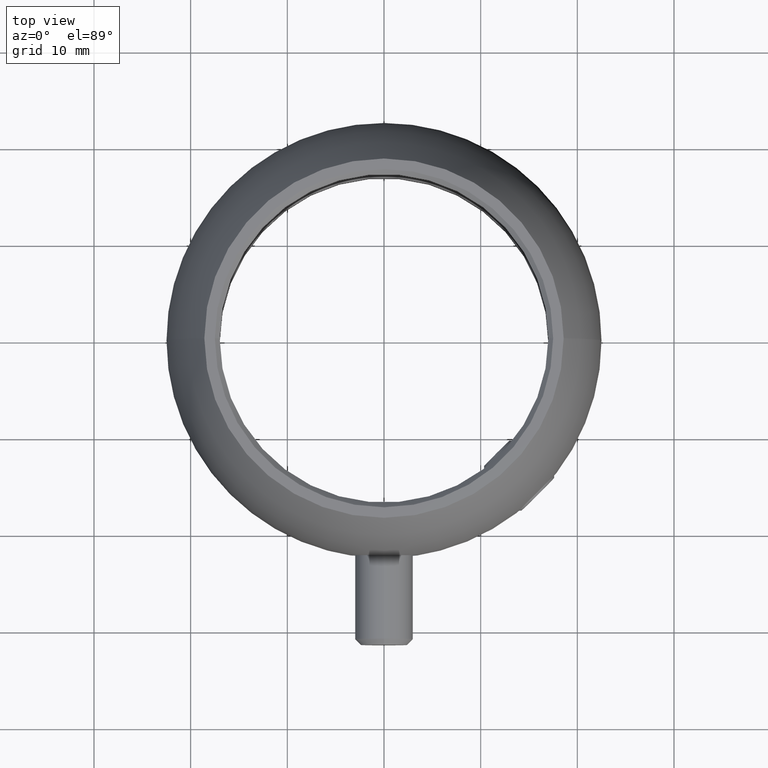
[diagram: clean part render]
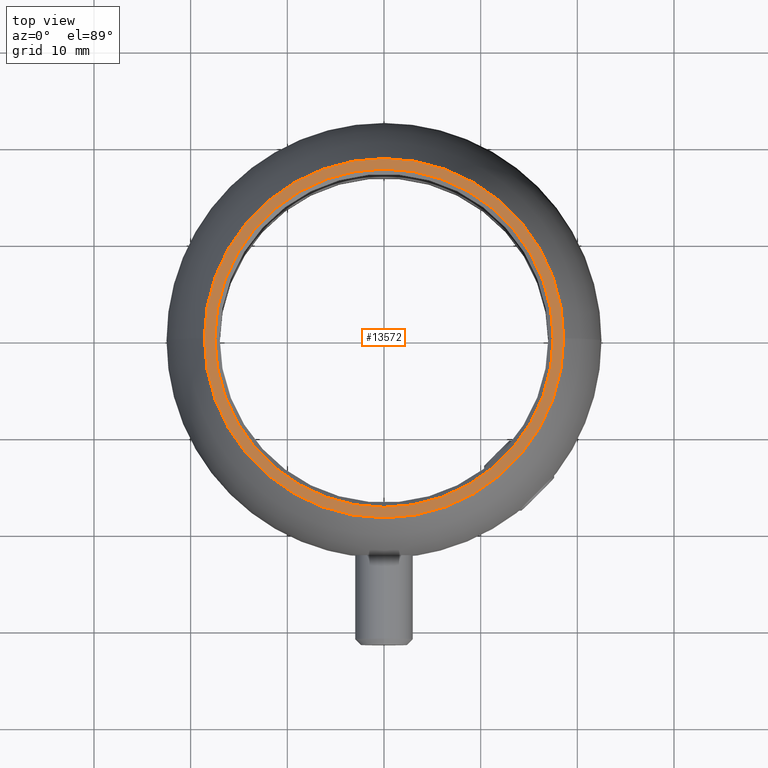
[diagram: same view with one face highlighted and labeled with its STEP entity id]
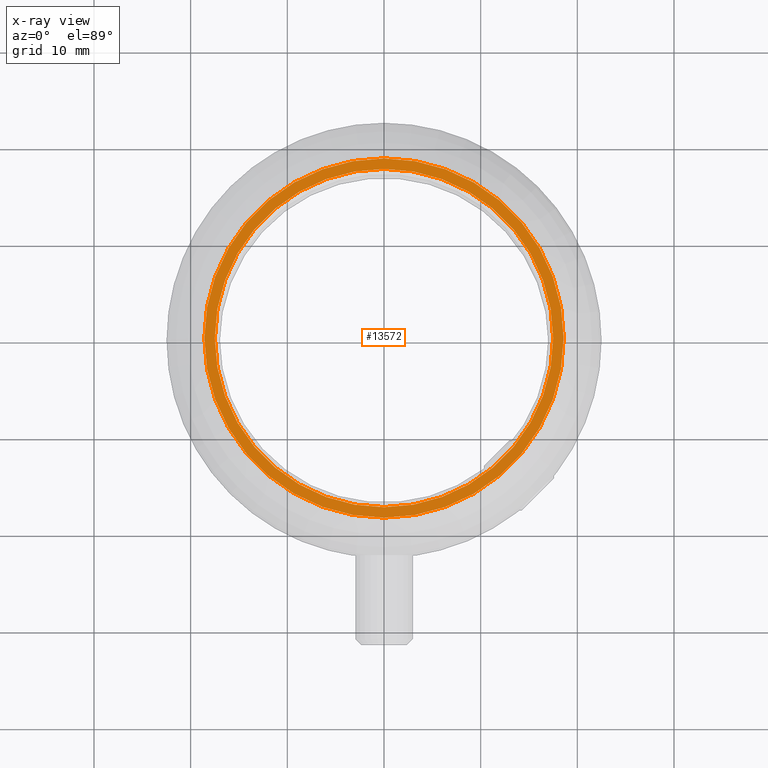
[diagram: x-ray of the same camera — body ghosted, the highlighted face saturated]
A machine part, top view. The second image highlights one B-rep face of the part: STEP entity #13572.
The next image is the same camera in x-ray: the body ghosted, the highlighted face saturated — about 0% of this face is hidden behind the body in this view.
In plain terms, the highlighted planar face has unit normal (0, 0, -1).
Its self-contained STEP definition (entity closure, byte-faithful):
#302 = DIRECTION ( 'NONE',  ( -0.000000000000000000, -0.000000000000000000, 1.000000000000000000 ) ) ;
#570 = ORIENTED_EDGE ( 'NONE', *, *, #12936, .F. ) ;
#910 = CIRCLE ( 'NONE', #17827, 18.58679276123038804 ) ;
#1076 = DIRECTION ( 'NONE',  ( 0.000000000000000000, 0.000000000000000000, -1.000000000000000000 ) ) ;
#1498 = AXIS2_PLACEMENT_3D ( 'NONE', #3514, #8497, #1667 ) ;
#1664 = EDGE_CURVE ( 'NONE', #2584, #17037, #5212, .T. ) ;
#1667 = DIRECTION ( 'NONE',  ( 1.000000000000000000, 0.000000000000000000, 0.000000000000000000 ) ) ;
#2584 = VERTEX_POINT ( 'NONE', #17830 ) ;
#3514 = CARTESIAN_POINT ( 'NONE',  ( 0.000000000000000000, 0.000000000000000000, 14.00000000000000178 ) ) ;
#3735 = DIRECTION ( 'NONE',  ( 1.000000000000000000, 0.000000000000000000, 0.000000000000000000 ) ) ;
#3969 = CIRCLE ( 'NONE', #5939, 18.58679276123038804 ) ;
#4698 = FACE_OUTER_BOUND ( 'NONE', #16415, .T. ) ;
#5016 = VERTEX_POINT ( 'NONE', #20831 ) ;
#5212 = CIRCLE ( 'NONE', #1498, 17.50000000000000000 ) ;
#5577 = DIRECTION ( 'NONE',  ( -0.000000000000000000, -0.000000000000000000, 1.000000000000000000 ) ) ;
#5939 = AXIS2_PLACEMENT_3D ( 'NONE', #7211, #5577, #3735 ) ;
#7075 = EDGE_CURVE ( 'NONE', #5016, #12567, #3969, .T. ) ;
#7211 = CARTESIAN_POINT ( 'NONE',  ( 0.000000000000000000, 0.000000000000000000, 13.99999999999999822 ) ) ;
#8428 = AXIS2_PLACEMENT_3D ( 'NONE', #15403, #302, #12136 ) ;
#8497 = DIRECTION ( 'NONE',  ( -0.000000000000000000, -0.000000000000000000, 1.000000000000000000 ) ) ;
#9008 = AXIS2_PLACEMENT_3D ( 'NONE', #19856, #1076, #16485 ) ;
#12035 = ORIENTED_EDGE ( 'NONE', *, *, #1664, .F. ) ;
#12136 = DIRECTION ( 'NONE',  ( 1.000000000000000000, 0.000000000000000000, 0.000000000000000000 ) ) ;
#12379 = ORIENTED_EDGE ( 'NONE', *, *, #17236, .T. ) ;
#12434 = DIRECTION ( 'NONE',  ( -0.000000000000000000, -0.000000000000000000, 1.000000000000000000 ) ) ;
#12563 = PLANE ( 'NONE',  #9008 ) ;
#12567 = VERTEX_POINT ( 'NONE', #15716 ) ;
#12936 = EDGE_CURVE ( 'NONE', #17037, #2584, #16843, .T. ) ;
#13572 = ADVANCED_FACE ( 'NONE', ( #20729, #4698 ), #12563, .F. ) ;
#15088 = EDGE_LOOP ( 'NONE', ( #12035, #570 ) ) ;
#15114 = CARTESIAN_POINT ( 'NONE',  ( -17.50000000000000000, 2.143131898507868248E-15, 14.00000000000000178 ) ) ;
#15403 = CARTESIAN_POINT ( 'NONE',  ( 0.000000000000000000, 0.000000000000000000, 14.00000000000000178 ) ) ;
#15563 = CARTESIAN_POINT ( 'NONE',  ( 0.000000000000000000, 0.000000000000000000, 13.99999999999999822 ) ) ;
#15716 = CARTESIAN_POINT ( 'NONE',  ( -18.58679276123038804, 2.276225626145599495E-15, 13.99999999999999822 ) ) ;
#16415 = EDGE_LOOP ( 'NONE', ( #17424, #12379 ) ) ;
#16485 = DIRECTION ( 'NONE',  ( -1.000000000000000000, 0.000000000000000000, -0.000000000000000000 ) ) ;
#16843 = CIRCLE ( 'NONE', #8428, 17.50000000000000000 ) ;
#17037 = VERTEX_POINT ( 'NONE', #15114 ) ;
#17236 = EDGE_CURVE ( 'NONE', #12567, #5016, #910, .T. ) ;
#17424 = ORIENTED_EDGE ( 'NONE', *, *, #7075, .T. ) ;
#17511 = DIRECTION ( 'NONE',  ( 1.000000000000000000, 0.000000000000000000, 0.000000000000000000 ) ) ;
#17827 = AXIS2_PLACEMENT_3D ( 'NONE', #15563, #12434, #17511 ) ;
#17830 = CARTESIAN_POINT ( 'NONE',  ( 17.50000000000000000, 0.000000000000000000, 14.00000000000000178 ) ) ;
#19856 = CARTESIAN_POINT ( 'NONE',  ( 0.000000000000000000, 18.58679276123038804, 14.00000000000000000 ) ) ;
#20729 = FACE_BOUND ( 'NONE', #15088, .T. ) ;
#20831 = CARTESIAN_POINT ( 'NONE',  ( 18.58679276123038804, 0.000000000000000000, 13.99999999999999822 ) ) ;